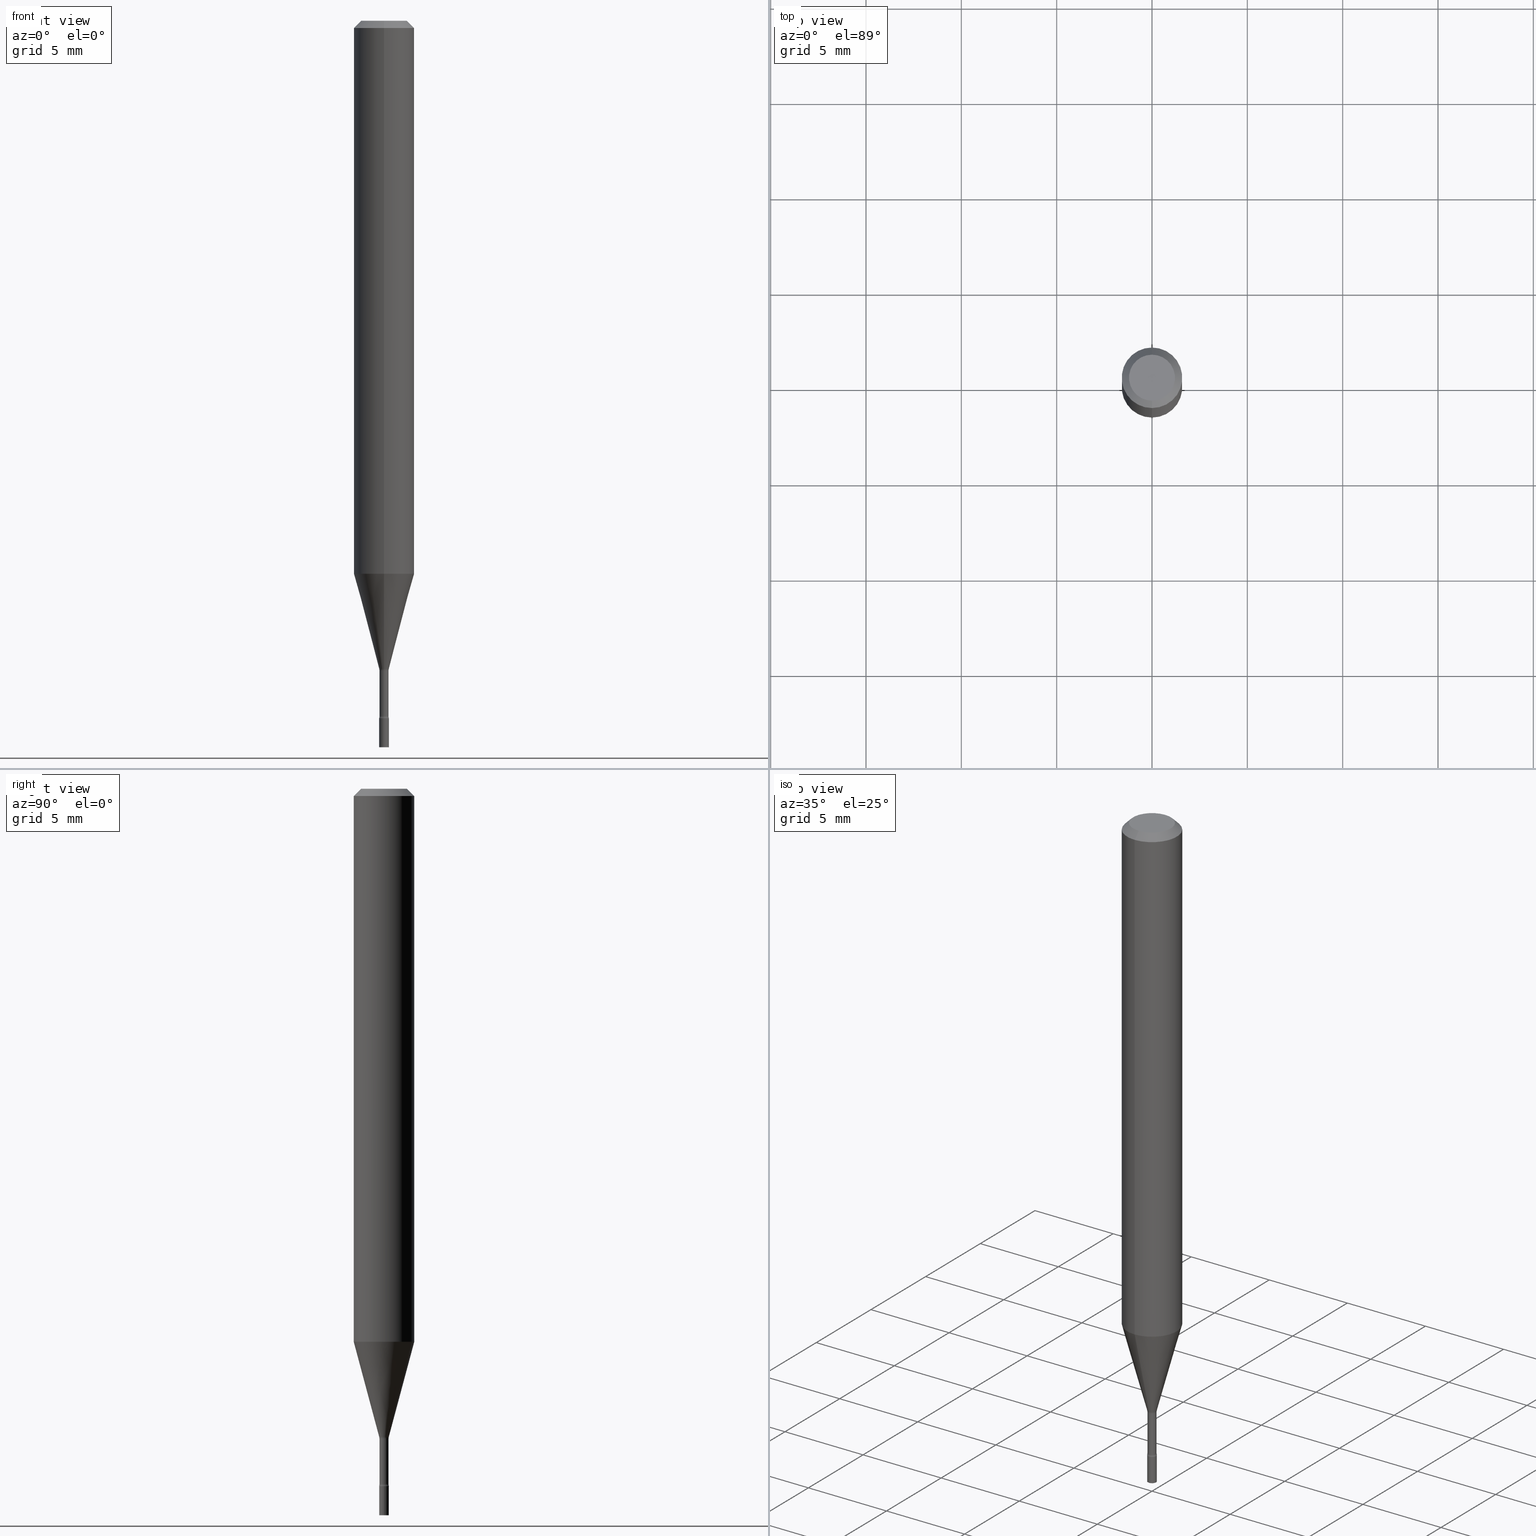
[diagram: canonical four-view strip — front | top / right | iso, engineering-drawing reading convention]
A machine part, canonical four-view strip (front | top / right | iso — engineering-drawing reading convention). The complete STEP part file that produces these views, byte-faithful:
ISO-10303-21;
HEADER;
FILE_DESCRIPTION (( 'STEP AP203' ),
    '1' );
FILE_NAME ('03456.STEP',
    '2024-03-08T21:25:03',
    ( '' ),
    ( '' ),
    'SwSTEP 2.0',
    'SolidWorks 2023',
    '' );
FILE_SCHEMA (( 'CONFIG_CONTROL_DESIGN' ));
ENDSEC;

DATA;
#1 = VERTEX_POINT ( 'NONE', #143 ) ;
#2 = EDGE_CURVE ( 'NONE', #483, #94, #250, .T. ) ;
#3 = FACE_OUTER_BOUND ( 'NONE', #416, .T. ) ;
#4 = VERTEX_POINT ( 'NONE', #15 ) ;
#5 = DATE_AND_TIME ( #96, #332 ) ;
#6 = LINE ( 'NONE', #288, #127 ) ;
#7 = CALENDAR_DATE ( 2024, 8, 3 ) ;
#8 = FACE_OUTER_BOUND ( 'NONE', #53, .T. ) ;
#9 = ORIENTED_EDGE ( 'NONE', *, *, #38, .T. ) ;
#10 = CLOSED_SHELL ( 'NONE', ( #43, #185, #311, #215 ) ) ;
#11 = AXIS2_PLACEMENT_3D ( 'NONE', #202, #391, #37 ) ;
#12 = EDGE_CURVE ( 'NONE', #271, #313, #343, .T. ) ;
#13 = CARTESIAN_POINT ( 'NONE',  ( 3.521330221827632520E-29, -5.027940574380074550E-15, -1.440000000000000169 ) ) ;
#14 = EDGE_LOOP ( 'NONE', ( #435, #137, #349, #107 ) ) ;
#15 = CARTESIAN_POINT ( 'NONE',  ( -0.01000000000000000021, -5.061423294523413937E-15, -1.500000000000000222 ) ) ;
#16 = DIRECTION ( 'NONE',  ( 1.000000000000000000, -7.105427357601001070E-15, 4.926317272768652439E-29 ) ) ;
#17 = EDGE_LOOP ( 'NONE', ( #192, #326, #440, #382 ) ) ;
#18 = FACE_OUTER_BOUND ( 'NONE', #17, .T. ) ;
#19 = CARTESIAN_POINT ( 'NONE',  ( 3.281622483352105208E-29, -4.685673252558591143E-15, -1.341974787463811269 ) ) ;
#20 = CONICAL_SURFACE ( 'NONE', #239, 0.06250000000000000000, 0.7853981633974483900 ) ;
#21 = APPROVAL_PERSON_ORGANIZATION ( #446, #464, #293 ) ;
#22 = CC_DESIGN_PERSON_AND_ORGANIZATION_ASSIGNMENT ( #287, #254, ( #251 ) ) ;
#23 = DIRECTION ( 'NONE',  ( -6.982962677686266711E-15, -1.000000000000000000, 3.491625398875051946E-15 ) ) ;
#24 = EDGE_CURVE ( 'NONE', #375, #95, #494, .T. ) ;
#25 = DIRECTION ( 'NONE',  ( 1.000000000000000000, -6.982962677686235945E-15, 0.000000000000000000 ) ) ;
#26 = CYLINDRICAL_SURFACE ( 'NONE', #35, 0.01000000000000000021 ) ;
#27 = FACE_OUTER_BOUND ( 'NONE', #465, .T. ) ;
#28 = LINE ( 'NONE', #72, #301 ) ;
#29 = AXIS2_PLACEMENT_3D ( 'NONE', #230, #188, #381 ) ;
#30 = AXIS2_PLACEMENT_3D ( 'NONE', #398, #69, #357 ) ;
#31 = DIRECTION ( 'NONE',  ( -2.445368209602522272E-29, 3.491625398875051552E-15, 1.000000000000000000 ) ) ;
#32 = LINE ( 'NONE', #121, #170 ) ;
#33 = PERSON ( 'UNSPECIFIED', 'UNSPECIFIED', 'UNSPECIFIED', ('UNSPECIFIED'), ('UNSPECIFIED'), ('UNSPECIFIED') ) ;
#34 = VERTEX_POINT ( 'NONE', #269 ) ;
#35 = AXIS2_PLACEMENT_3D ( 'NONE', #350, #151, #307 ) ;
#36 = ORIENTED_EDGE ( 'NONE', *, *, #395, .F. ) ;
#37 = DIRECTION ( 'NONE',  ( 1.000000000000000000, -6.982962677686235945E-15, 0.000000000000000000 ) ) ;
#38 = EDGE_CURVE ( 'NONE', #336, #356, #387, .T. ) ;
#39 = PERSON_AND_ORGANIZATION ( #33, #210 ) ;
#40 = PERSON_AND_ORGANIZATION ( #33, #210 ) ;
#41 = FACE_OUTER_BOUND ( 'NONE', #70, .T. ) ;
#42 = ORIENTED_EDGE ( 'NONE', *, *, #304, .T. ) ;
#43 = ADVANCED_FACE ( 'NONE', ( #266 ), #26, .T. ) ;
#44 = ORIENTED_EDGE ( 'NONE', *, *, #274, .T. ) ;
#45 = DATE_TIME_ROLE ( 'classification_date' ) ;
#46 = DIRECTION ( 'NONE',  ( -2.445368209602522272E-29, 3.491625398875051552E-15, 1.000000000000000000 ) ) ;
#47 = ORIENTED_EDGE ( 'NONE', *, *, #364, .T. ) ;
#48 = APPROVAL_ROLE ( '' ) ;
#49 = CARTESIAN_POINT ( 'NONE',  ( 3.521475080906597305E-29, -5.027733127934130649E-15, -1.440000000000000169 ) ) ;
#50 = ORIENTED_EDGE ( 'NONE', *, *, #491, .T. ) ;
#51 = EDGE_LOOP ( 'NONE', ( #461, #517, #333, #44 ) ) ;
#52 = DIRECTION ( 'NONE',  ( -2.445368209602522272E-29, 3.491625398875051552E-15, 1.000000000000000000 ) ) ;
#53 = EDGE_LOOP ( 'NONE', ( #264, #131, #50, #305 ) ) ;
#54 = DIRECTION ( 'NONE',  ( -2.445368209602522272E-29, 3.491625398875051552E-15, 1.000000000000000000 ) ) ;
#55 = ADVANCED_FACE ( 'NONE', ( #18 ), #119, .T. ) ;
#56 = DIRECTION ( 'NONE',  ( 2.445368209602522272E-29, -3.491625398875051552E-15, -1.000000000000000000 ) ) ;
#57 = EDGE_LOOP ( 'NONE', ( #9, #224 ) ) ;
#58 = ORIENTED_EDGE ( 'NONE', *, *, #320, .F. ) ;
#59 = DIRECTION ( 'NONE',  ( -2.445468806185136597E-29, 3.491481338843145583E-15, 1.000000000000000000 ) ) ;
#60 = ORIENTED_EDGE ( 'NONE', *, *, #451, .F. ) ;
#61 = DIRECTION ( 'NONE',  ( -6.982962677686264344E-15, -1.000000000000000000, 0.000000000000000000 ) ) ;
#62 = CARTESIAN_POINT ( 'NONE',  ( 3.521475080906597305E-29, -5.027733127934130649E-15, -1.440000000000000169 ) ) ;
#63 = AXIS2_PLACEMENT_3D ( 'NONE', #263, #493, #23 ) ;
#64 = CARTESIAN_POINT ( 'NONE',  ( -4.287811248607203282E-16, -0.06250000000000005551, -0.01499999999999981209 ) ) ;
#65 = CARTESIAN_POINT ( 'NONE',  ( 3.521475080906597305E-29, -5.027733127934130649E-15, -1.440000000000000169 ) ) ;
#66 = ORIENTED_EDGE ( 'NONE', *, *, #402, .T. ) ;
#67 = DIRECTION ( 'NONE',  ( -6.982962677686269077E-15, -1.000000000000000000, 0.000000000000000000 ) ) ;
#68 = ORIENTED_EDGE ( 'NONE', *, *, #431, .F. ) ;
#69 = DIRECTION ( 'NONE',  ( -2.445368209602522272E-29, 3.491625398875051552E-15, 1.000000000000000000 ) ) ;
#70 = EDGE_LOOP ( 'NONE', ( #299, #47, #83, #291 ) ) ;
#71 = CONICAL_SURFACE ( 'NONE', #388, 0.06250000000000000000, 0.7853981633974483900 ) ;
#72 = CARTESIAN_POINT ( 'NONE',  ( -6.920892941966473990E-17, -0.009911112605668655554, -1.338092501787273347 ) ) ;
#73 = FACE_OUTER_BOUND ( 'NONE', #414, .T. ) ;
#74 = ORIENTED_EDGE ( 'NONE', *, *, #352, .F. ) ;
#75 = CC_DESIGN_PERSON_AND_ORGANIZATION_ASSIGNMENT ( #39, #515, ( #92 ) ) ;
#76 = DIRECTION ( 'NONE',  ( 7.105427357601005014E-15, 1.000000000000000000, 0.000000000000000000 ) ) ;
#77 = EDGE_LOOP ( 'NONE', ( #36, #124, #368, #66 ) ) ;
#78 = TOROIDAL_SURFACE ( 'NONE', #316, 0.02440000000000000155, 0.01500000000000002373 ) ;
#79 = AXIS2_PLACEMENT_3D ( 'NONE', #476, #509, #118 ) ;
#80 = ADVANCED_BREP_SHAPE_REPRESENTATION ( '03456', ( #204, #200, #497 ), #457 ) ;
#81 = COORDINATED_UNIVERSAL_TIME_OFFSET ( 5, 0, .BEHIND. ) ;
#82 = ORIENTED_EDGE ( 'NONE', *, *, #24, .T. ) ;
#83 = ORIENTED_EDGE ( 'NONE', *, *, #2, .T. ) ;
#84 = DATE_AND_TIME ( #252, #508 ) ;
#85 = PRODUCT_DEFINITION ( 'UNKNOWN', '', #251, #161 ) ;
#86 = DIRECTION ( 'NONE',  ( 6.982962677686265922E-15, 1.000000000000000000, -3.483106191921935554E-15 ) ) ;
#87 = EDGE_CURVE ( 'NONE', #184, #1, #203, .T. ) ;
#88 = DIRECTION ( 'NONE',  ( -6.982962677686265922E-15, -1.000000000000000000, 3.491625398875051946E-15 ) ) ;
#89 = AXIS2_PLACEMENT_3D ( 'NONE', #516, #245, #169 ) ;
#90 = APPLICATION_PROTOCOL_DEFINITION ( 'international standard', 'config_control_design', 1994, #511 ) ;
#91 = AXIS2_PLACEMENT_3D ( 'NONE', #415, #54, #221 ) ;
#92 = SECURITY_CLASSIFICATION ( '', '', #441 ) ;
#93 = PLANE ( 'NONE',  #407 ) ;
#94 = VERTEX_POINT ( 'NONE', #97 ) ;
#95 = VERTEX_POINT ( 'NONE', #411 ) ;
#96 = CALENDAR_DATE ( 2024, 8, 3 ) ;
#97 = CARTESIAN_POINT ( 'NONE',  ( 4.440892098500906207E-16, 0.06249999999999993755, -0.01500000000000024751 ) ) ;
#98 = CC_DESIGN_DATE_AND_TIME_ASSIGNMENT ( #327, #139, ( #85 ) ) ;
#99 = DIRECTION ( 'NONE',  ( -2.438088387897960049E-29, 3.491481338843145188E-15, 1.000000000000000000 ) ) ;
#100 = DIRECTION ( 'NONE',  ( -6.982962677686265922E-15, -1.000000000000000000, 3.483106191921935554E-15 ) ) ;
#101 = CARTESIAN_POINT ( 'NONE',  ( 0.000000000000000000, 0.000000000000000000, 0.000000000000000000 ) ) ;
#102 = CIRCLE ( 'NONE', #475, 0.01000000000000000021 ) ;
#103 = CARTESIAN_POINT ( 'NONE',  ( -6.920892941966473990E-17, -0.009911112605668655554, -1.338092501787273347 ) ) ;
#104 = ADVANCED_FACE ( 'NONE', ( #8 ), #135, .T. ) ;
#105 = VERTEX_POINT ( 'NONE', #453 ) ;
#106 = CARTESIAN_POINT ( 'NONE',  ( 3.272128865378104178E-29, -4.672117765284703339E-15, -1.338092501787273347 ) ) ;
#107 = ORIENTED_EDGE ( 'NONE', *, *, #257, .F. ) ;
#108 = CARTESIAN_POINT ( 'NONE',  ( 6.892264536876491067E-17, 0.009399999999995004366, -1.435800000000000187 ) ) ;
#109 = DIRECTION ( 'NONE',  ( -2.445368209602522272E-29, 3.491625398875051552E-15, 1.000000000000000000 ) ) ;
#110 = CIRCLE ( 'NONE', #480, 0.01000000000000000021 ) ;
#111 = LOCAL_TIME ( 16, 25, 3.000000000000000000, #286 ) ;
#112 = ORIENTED_EDGE ( 'NONE', *, *, #513, .T. ) ;
#113 = EDGE_CURVE ( 'NONE', #4, #115, #331, .T. ) ;
#114 = FACE_OUTER_BOUND ( 'NONE', #342, .T. ) ;
#115 = VERTEX_POINT ( 'NONE', #486 ) ;
#116 = EDGE_CURVE ( 'NONE', #171, #94, #255, .T. ) ;
#117 = ORIENTED_EDGE ( 'NONE', *, *, #24, .F. ) ;
#118 = DIRECTION ( 'NONE',  ( -6.982962677686267499E-15, -1.000000000000000000, 0.000000000000000000 ) ) ;
#119 = CONICAL_SURFACE ( 'NONE', #518, 0.009911112605663983943, 0.2617993877991500740 ) ;
#120 = CIRCLE ( 'NONE', #369, 0.01500000000000001853 ) ;
#121 = CARTESIAN_POINT ( 'NONE',  ( 0.01000000000000000021, -6.982962677686265724E-17, 4.876176775795935968E-31 ) ) ;
#122 = APPLICATION_CONTEXT ( 'configuration controlled 3d designs of mechanical parts and assemblies' ) ;
#123 = PLANE ( 'NONE',  #162 ) ;
#124 = ORIENTED_EDGE ( 'NONE', *, *, #360, .F. ) ;
#125 = PRODUCT ( '03456', '03456', '', ( #134 ) ) ;
#126 = DIRECTION ( 'NONE',  ( 1.000000000000000000, -7.105427357601001070E-15, 4.926317272768652439E-29 ) ) ;
#127 = VECTOR ( 'NONE', #290, 39.37007874015748143 ) ;
#128 = APPROVAL_STATUS ( 'not_yet_approved' ) ;
#129 = ADVANCED_FACE ( 'NONE', ( #253 ), #488, .F. ) ;
#130 = DIRECTION ( 'NONE',  ( -6.982962677686265922E-15, -1.000000000000000000, 3.491625398875051552E-15 ) ) ;
#131 = ORIENTED_EDGE ( 'NONE', *, *, #451, .T. ) ;
#132 = PERSON_AND_ORGANIZATION ( #33, #210 ) ;
#133 = FACE_OUTER_BOUND ( 'NONE', #57, .T. ) ;
#134 = MECHANICAL_CONTEXT ( 'NONE', #511, 'mechanical' ) ;
#135 = CYLINDRICAL_SURFACE ( 'NONE', #209, 0.06250000000000000000 ) ;
#136 = CARTESIAN_POINT ( 'NONE',  ( -3.773273898774340269E-16, -0.04749999999999999362, 1.369451383702114461E-16 ) ) ;
#137 = ORIENTED_EDGE ( 'NONE', *, *, #470, .T. ) ;
#138 = PRODUCT_RELATED_PRODUCT_CATEGORY ( 'detail', '', ( #125 ) ) ;
#139 = DATE_TIME_ROLE ( 'creation_date' ) ;
#140 = DIRECTION ( 'NONE',  ( -6.982962677686264344E-15, -1.000000000000000000, 0.000000000000000000 ) ) ;
#141 = DIRECTION ( 'NONE',  ( -2.445368209602522272E-29, 3.491625398875051552E-15, 1.000000000000000000 ) ) ;
#142 = DIRECTION ( 'NONE',  ( 1.000000000000000000, -6.982962677686235945E-15, 0.000000000000000000 ) ) ;
#143 = CARTESIAN_POINT ( 'NONE',  ( -6.982962677682741735E-17, -0.01000000000000502397, -1.440000000000000169 ) ) ;
#144 = FACE_OUTER_BOUND ( 'NONE', #189, .T. ) ;
#145 = ADVANCED_FACE ( 'NONE', ( #41 ), #20, .T. ) ;
#146 = AXIS2_PLACEMENT_3D ( 'NONE', #272, #178, #406 ) ;
#147 = AXIS2_PLACEMENT_3D ( 'NONE', #273, #31, #318 ) ;
#148 = CARTESIAN_POINT ( 'NONE',  ( 7.042269065258173483E-17, 0.009911112605659312333, -1.338092501787273347 ) ) ;
#149 = ORIENTED_EDGE ( 'NONE', *, *, #472, .T. ) ;
#150 = DIRECTION ( 'NONE',  ( -6.982962677686264344E-15, -1.000000000000000000, 0.000000000000000000 ) ) ;
#151 = DIRECTION ( 'NONE',  ( -2.445468806185136597E-29, 3.491481338843145583E-15, 1.000000000000000000 ) ) ;
#152 = CARTESIAN_POINT ( 'NONE',  ( 3.668052314403790151E-31, -5.237438098312587928E-17, -0.01500000000000003067 ) ) ;
#153 = CIRCLE ( 'NONE', #448, 0.01500000000000001853 ) ;
#154 = CC_DESIGN_APPROVAL ( #464, ( #251 ) ) ;
#155 = CC_DESIGN_PERSON_AND_ORGANIZATION_ASSIGNMENT ( #334, #206, ( #125 ) ) ;
#156 = EDGE_CURVE ( 'NONE', #105, #94, #6, .T. ) ;
#157 = DIRECTION ( 'NONE',  ( -2.445368209602522272E-29, 3.491625398875051552E-15, 1.000000000000000000 ) ) ;
#158 = DIRECTION ( 'NONE',  ( -2.445368209602522272E-29, 3.491625398875051552E-15, 1.000000000000000000 ) ) ;
#159 = EDGE_CURVE ( 'NONE', #313, #271, #179, .T. ) ;
#160 = TOROIDAL_SURFACE ( 'NONE', #91, 0.02440000000000000155, 0.01500000000000002373 ) ;
#161 = DESIGN_CONTEXT ( 'detailed design', #122, 'design' ) ;
#162 = AXIS2_PLACEMENT_3D ( 'NONE', #506, #321, #164 ) ;
#163 = VECTOR ( 'NONE', #306, 39.37007874015748143 ) ;
#164 = DIRECTION ( 'NONE',  ( 6.982962677686265922E-15, 1.000000000000000000, -3.491625398875051552E-15 ) ) ;
#165 = LENGTH_MEASURE_WITH_UNIT ( LENGTH_MEASURE( 0.02539999999999999897 ), #432 );
#166 = ADVANCED_FACE ( 'NONE', ( #3 ), #484, .T. ) ;
#167 = EDGE_LOOP ( 'NONE', ( #485, #82, #177, #338 ) ) ;
#168 = COORDINATED_UNIVERSAL_TIME_OFFSET ( 5, 0, .BEHIND. ) ;
#169 = DIRECTION ( 'NONE',  ( -1.000000000000000000, 6.982962677686265922E-15, -4.876176775795935793E-29 ) ) ;
#170 = VECTOR ( 'NONE', #362, 39.37007874015748143 ) ;
#171 = VERTEX_POINT ( 'NONE', #372 ) ;
#172 = PERSON_AND_ORGANIZATION_ROLE ( 'creator' ) ;
#173 = DIRECTION ( 'NONE',  ( -2.445468806185136877E-29, 3.491481338843145188E-15, 1.000000000000000000 ) ) ;
#174 = VERTEX_POINT ( 'NONE', #447 ) ;
#175 = DIRECTION ( 'NONE',  ( -2.445468806185136597E-29, 3.491481338843145583E-15, 1.000000000000000000 ) ) ;
#176 = ORIENTED_EDGE ( 'NONE', *, *, #2, .F. ) ;
#177 = ORIENTED_EDGE ( 'NONE', *, *, #274, .F. ) ;
#178 = DIRECTION ( 'NONE',  ( -1.000000000000000000, 6.982962677686265922E-15, -4.883557194083112901E-29 ) ) ;
#179 = CIRCLE ( 'NONE', #473, 0.009911112605663983943 ) ;
#180 = AXIS2_PLACEMENT_3D ( 'NONE', #279, #199, #354 ) ;
#181 = CYLINDRICAL_SURFACE ( 'NONE', #466, 0.009400000000000009043 ) ;
#182 = VERTEX_POINT ( 'NONE', #136 ) ;
#183 = CARTESIAN_POINT ( 'NONE',  ( -1.703842893355120750E-16, -0.02440000000000468877, -1.341974787463811269 ) ) ;
#184 = VERTEX_POINT ( 'NONE', #208 ) ;
#185 = ADVANCED_FACE ( 'NONE', ( #133 ), #93, .T. ) ;
#186 = ADVANCED_FACE ( 'NONE', ( #377 ), #181, .T. ) ;
#187 = DIRECTION ( 'NONE',  ( -2.445368209602522272E-29, 3.491625398875051552E-15, 1.000000000000000000 ) ) ;
#188 = DIRECTION ( 'NONE',  ( -2.445368209602522272E-29, 3.491625398875051552E-15, 1.000000000000000000 ) ) ;
#189 = EDGE_LOOP ( 'NONE', ( #378, #195, #112, #74 ) ) ;
#190 = CARTESIAN_POINT ( 'NONE',  ( 3.272128865378104178E-29, -4.672117765284703339E-15, -1.338092501787273347 ) ) ;
#191 = DIRECTION ( 'NONE',  ( -2.445368209602522272E-29, 3.491625398875051552E-15, 1.000000000000000000 ) ) ;
#192 = ORIENTED_EDGE ( 'NONE', *, *, #12, .T. ) ;
#193 = LOCAL_TIME ( 16, 25, 3.000000000000000000, #452 ) ;
#194 = DIRECTION ( 'NONE',  ( -2.445468806185136597E-29, 3.491481338843145583E-15, 1.000000000000000000 ) ) ;
#195 = ORIENTED_EDGE ( 'NONE', *, *, #113, .T. ) ;
#196 = DIRECTION ( 'NONE',  ( -2.445368209602522272E-29, 3.491625398875051552E-15, 1.000000000000000000 ) ) ;
#197 = ADVANCED_FACE ( 'NONE', ( #366 ), #160, .F. ) ;
#198 = EDGE_LOOP ( 'NONE', ( #297, #443, #403, #370 ) ) ;
#199 = DIRECTION ( 'NONE',  ( -2.445368209602522272E-29, 3.491625398875051552E-15, 1.000000000000000000 ) ) ;
#200 = MANIFOLD_SOLID_BREP ( 'Body-Move/Copy2[2]', #507 ) ;
#201 = CIRCLE ( 'NONE', #63, 0.04749999999999999362 ) ;
#202 = CARTESIAN_POINT ( 'NONE',  ( 3.668203209277704895E-29, -5.237222008264718177E-15, -1.500000000000000222 ) ) ;
#203 = CIRCLE ( 'NONE', #146, 0.01499999999999999424 ) ;
#204 = MANIFOLD_SOLID_BREP ( 'Body-Move/Copy2[1]', #10 ) ;
#205 = CARTESIAN_POINT ( 'NONE',  ( -4.364351673553916201E-16, -0.06250000000000000000, 2.182265874296907220E-16 ) ) ;
#206 = PERSON_AND_ORGANIZATION_ROLE ( 'design_owner' ) ;
#207 = APPLICATION_PROTOCOL_DEFINITION ( 'international standard', 'config_control_design', 1994, #122 ) ;
#208 = CARTESIAN_POINT ( 'NONE',  ( -6.563984917021591972E-17, -0.009400000000005031067, -1.435800000000000187 ) ) ;
#209 = AXIS2_PLACEMENT_3D ( 'NONE', #324, #46, #130 ) ;
#210 = ORGANIZATION ( 'UNSPECIFIED', 'UNSPECIFIED', '' ) ;
#211 = DIRECTION ( 'NONE',  ( 2.445368209602522272E-29, -3.491625398875051552E-15, -1.000000000000000000 ) ) ;
#212 = UNCERTAINTY_MEASURE_WITH_UNIT (LENGTH_MEASURE( 1.000000000000000082E-05 ), #237, 'distance_accuracy_value', 'NONE');
#213 = CC_DESIGN_PERSON_AND_ORGANIZATION_ASSIGNMENT ( #244, #241, ( #251 ) ) ;
#214 = COORDINATED_UNIVERSAL_TIME_OFFSET ( 5, 0, .BEHIND. ) ;
#215 = ADVANCED_FACE ( 'NONE', ( #520 ), #256, .T. ) ;
#216 = DIRECTION ( 'NONE',  ( 1.000000000000000000, -6.982962677686265922E-15, 4.876176775795935793E-29 ) ) ;
#217 = DIRECTION ( 'NONE',  ( -6.982962677686265922E-15, -1.000000000000000000, 3.491625398875051552E-15 ) ) ;
#218 = ORIENTED_EDGE ( 'NONE', *, *, #113, .F. ) ;
#219 = VECTOR ( 'NONE', #109, 39.37007874015748143 ) ;
#220 = CC_DESIGN_APPROVAL ( #229, ( #92 ) ) ;
#221 = DIRECTION ( 'NONE',  ( -6.982962677686265922E-15, -1.000000000000000000, 3.491625398875051946E-15 ) ) ;
#222 = ORIENTED_EDGE ( 'NONE', *, *, #156, .T. ) ;
#223 = DIRECTION ( 'NONE',  ( 1.000000000000000000, -6.982962677686265922E-15, 4.876176775795935793E-29 ) ) ;
#224 = ORIENTED_EDGE ( 'NONE', *, *, #352, .T. ) ;
#225 = DIRECTION ( 'NONE',  ( -6.982962677686265922E-15, -1.000000000000000000, 0.000000000000000000 ) ) ;
#226 = AXIS2_PLACEMENT_3D ( 'NONE', #303, #302, #339 ) ;
#227 = FACE_OUTER_BOUND ( 'NONE', #14, .T. ) ;
#228 = DIRECTION ( 'NONE',  ( -2.445468806185136597E-29, 3.491481338843145583E-15, 1.000000000000000000 ) ) ;
#229 = APPROVAL ( #128, 'UNSPECIFIED' ) ;
#230 = CARTESIAN_POINT ( 'NONE',  ( 3.511059675347302737E-29, -5.013275747704799790E-15, -1.435800000000000187 ) ) ;
#231 = DIRECTION ( 'NONE',  ( -6.982962677686265922E-15, -1.000000000000000000, 0.000000000000000000 ) ) ;
#232 = CIRCLE ( 'NONE', #456, 0.009399999999999998634 ) ;
#233 = CIRCLE ( 'NONE', #393, 0.01499999999999999424 ) ;
#234 = ORIENTED_EDGE ( 'NONE', *, *, #159, .T. ) ;
#235 = EDGE_CURVE ( 'NONE', #4, #356, #482, .T. ) ;
#236 = DIRECTION ( 'NONE',  ( -6.982962677686265922E-15, -1.000000000000000000, 3.483106191921935554E-15 ) ) ;
#237 =( CONVERSION_BASED_UNIT ( 'INCH', #165 ) LENGTH_UNIT ( ) NAMED_UNIT ( #289 ) );
#238 = DIRECTION ( 'NONE',  ( -2.445368209602522272E-29, 3.491625398875051552E-15, 1.000000000000000000 ) ) ;
#239 = AXIS2_PLACEMENT_3D ( 'NONE', #374, #211, #86 ) ;
#240 = CIRCLE ( 'NONE', #147, 0.009399999999999998634 ) ;
#241 = PERSON_AND_ORGANIZATION_ROLE ( 'creator' ) ;
#242 = ADVANCED_FACE ( 'NONE', ( #227 ), #78, .F. ) ;
#243 = ORIENTED_EDGE ( 'NONE', *, *, #116, .T. ) ;
#244 = PERSON_AND_ORGANIZATION ( #33, #210 ) ;
#245 = DIRECTION ( 'NONE',  ( 2.438088387897960049E-29, -3.491481338843145188E-15, -1.000000000000000000 ) ) ;
#246 = EDGE_LOOP ( 'NONE', ( #117, #419, #430, #68 ) ) ;
#247 = DATE_AND_TIME ( #489, #502 ) ;
#248 = DIRECTION ( 'NONE',  ( -2.445368209602522272E-29, 3.491625398875051552E-15, 1.000000000000000000 ) ) ;
#249 = ORIENTED_EDGE ( 'NONE', *, *, #320, .T. ) ;
#250 = CIRCLE ( 'NONE', #353, 0.06250000000000000000 ) ;
#251 = PRODUCT_DEFINITION_FORMATION_WITH_SPECIFIED_SOURCE ( 'ANY', '', #125, .NOT_KNOWN. ) ;
#252 = CALENDAR_DATE ( 2024, 8, 3 ) ;
#253 = FACE_OUTER_BOUND ( 'NONE', #77, .T. ) ;
#254 = PERSON_AND_ORGANIZATION_ROLE ( 'design_supplier' ) ;
#255 = LINE ( 'NONE', #330, #423 ) ;
#256 = PLANE ( 'NONE',  #89 ) ;
#257 = EDGE_CURVE ( 'NONE', #271, #258, #153, .T. ) ;
#258 = VERTEX_POINT ( 'NONE', #468 ) ;
#259 = CARTESIAN_POINT ( 'NONE',  ( 3.272128865378104178E-29, -4.672117765284703339E-15, -1.338092501787273347 ) ) ;
#260 = CIRCLE ( 'NONE', #29, 0.009400000000000017716 ) ;
#261 = PLANE ( 'NONE',  #226 ) ;
#262 = ORIENTED_EDGE ( 'NONE', *, *, #281, .T. ) ;
#263 = CARTESIAN_POINT ( 'NONE',  ( 7.068842530673074926E-46, -1.009326531024059951E-31, -2.890706807635348289E-17 ) ) ;
#264 = ORIENTED_EDGE ( 'NONE', *, *, #116, .F. ) ;
#265 = DIRECTION ( 'NONE',  ( -2.445368209602522272E-29, 3.491625398875051552E-15, 1.000000000000000000 ) ) ;
#266 = FACE_OUTER_BOUND ( 'NONE', #198, .T. ) ;
#267 = ADVANCED_FACE ( 'NONE', ( #114 ), #261, .F. ) ;
#268 = FACE_OUTER_BOUND ( 'NONE', #361, .T. ) ;
#269 = CARTESIAN_POINT ( 'NONE',  ( 7.105427357604519833E-17, 0.009999999999994971245, -1.440000000000000169 ) ) ;
#270 = DIRECTION ( 'NONE',  ( 6.982962677686265922E-15, 1.000000000000000000, -3.483106191921935554E-15 ) ) ;
#271 = VERTEX_POINT ( 'NONE', #103 ) ;
#272 = CARTESIAN_POINT ( 'NONE',  ( -1.703842893355098316E-16, -0.02440000000000502184, -1.435800000000000187 ) ) ;
#273 = CARTESIAN_POINT ( 'NONE',  ( 3.281622483352105208E-29, -4.685673252558591143E-15, -1.341974787463811269 ) ) ;
#274 = EDGE_CURVE ( 'NONE', #258, #95, #232, .T. ) ;
#275 = ORIENTED_EDGE ( 'NONE', *, *, #87, .F. ) ;
#276 = DIRECTION ( 'NONE',  ( -2.445368209602522272E-29, 3.491625398875051552E-15, 1.000000000000000000 ) ) ;
#277 = AXIS2_PLACEMENT_3D ( 'NONE', #101, #59, #223 ) ;
#278 = CIRCLE ( 'NONE', #519, 0.06250000000000000000 ) ;
#279 = CARTESIAN_POINT ( 'NONE',  ( 7.068842530673074926E-46, -1.009326531024059951E-31, -2.890706807635348289E-17 ) ) ;
#280 = CC_DESIGN_PERSON_AND_ORGANIZATION_ASSIGNMENT ( #373, #172, ( #85 ) ) ;
#281 = EDGE_CURVE ( 'NONE', #174, #171, #292, .T. ) ;
#282 =( NAMED_UNIT ( * ) PLANE_ANGLE_UNIT ( ) SI_UNIT ( $, .RADIAN. ) );
#283 = AXIS2_PLACEMENT_3D ( 'NONE', #328, #52, #88 ) ;
#284 = CIRCLE ( 'NONE', #79, 0.009400000000000017716 ) ;
#285 = ORIENTED_EDGE ( 'NONE', *, *, #426, .F. ) ;
#286 = COORDINATED_UNIVERSAL_TIME_OFFSET ( 5, 0, .BEHIND. ) ;
#287 = PERSON_AND_ORGANIZATION ( #33, #210 ) ;
#288 = CARTESIAN_POINT ( 'NONE',  ( 4.364351673553919652E-16, 0.06249999999999995143, -0.01500000000000024751 ) ) ;
#289 = DIMENSIONAL_EXPONENTS ( 1.000000000000000000, 0.000000000000000000, 0.000000000000000000, 0.000000000000000000, 0.000000000000000000, 0.000000000000000000, 0.000000000000000000 ) ;
#290 = DIRECTION ( 'NONE',  ( 4.937700262164548042E-15, 0.7071067811865451302, -0.7071067811865499042 ) ) ;
#291 = ORIENTED_EDGE ( 'NONE', *, *, #156, .F. ) ;
#292 = CIRCLE ( 'NONE', #308, 0.06250000000000000000 ) ;
#293 = APPROVAL_ROLE ( '' ) ;
#294 = CARTESIAN_POINT ( 'NONE',  ( 3.668203209277704895E-29, -5.237222008264718177E-15, -1.500000000000000222 ) ) ;
#295 = CARTESIAN_POINT ( 'NONE',  ( 0.000000000000000000, 0.000000000000000000, 0.000000000000000000 ) ) ;
#296 = DIRECTION ( 'NONE',  ( -6.982962677686265922E-15, -1.000000000000000000, 3.491625398875051158E-15 ) ) ;
#297 = ORIENTED_EDGE ( 'NONE', *, *, #437, .T. ) ;
#298 = DIRECTION ( 'NONE',  ( 1.839019923739598738E-15, 0.2588190451025247363, 0.9659258262890673130 ) ) ;
#299 = ORIENTED_EDGE ( 'NONE', *, *, #504, .F. ) ;
#300 = AXIS2_PLACEMENT_3D ( 'NONE', #259, #187, #340 ) ;
#301 = VECTOR ( 'NONE', #436, 39.37007874015748854 ) ;
#302 = DIRECTION ( 'NONE',  ( -2.445368209602521711E-29, 3.491625398875051552E-15, 1.000000000000000000 ) ) ;
#303 = CARTESIAN_POINT ( 'NONE',  ( 6.982962677689787249E-17, 0.009999999999994971245, -1.440000000000000169 ) ) ;
#304 = EDGE_CURVE ( 'NONE', #105, #182, #201, .T. ) ;
#305 = ORIENTED_EDGE ( 'NONE', *, *, #477, .F. ) ;
#306 = DIRECTION ( 'NONE',  ( -4.851104656540964275E-15, -0.7071067811865500152, -0.7071067811865450192 ) ) ;
#307 = DIRECTION ( 'NONE',  ( 1.000000000000000000, -6.982962677686265922E-15, 4.876176775795935793E-29 ) ) ;
#308 = AXIS2_PLACEMENT_3D ( 'NONE', #495, #500, #345 ) ;
#309 = CARTESIAN_POINT ( 'NONE',  ( -0.01000000000000000021, -5.061423294523413937E-15, -1.440000000000000169 ) ) ;
#310 = CIRCLE ( 'NONE', #11, 0.01000000000000000021 ) ;
#311 = ADVANCED_FACE ( 'NONE', ( #144 ), #421, .T. ) ;
#312 = CYLINDRICAL_SURFACE ( 'NONE', #30, 0.009400000000000009043 ) ;
#313 = VERTEX_POINT ( 'NONE', #390 ) ;
#314 = FACE_OUTER_BOUND ( 'NONE', #246, .T. ) ;
#315 = LINE ( 'NONE', #471, #481 ) ;
#316 = AXIS2_PLACEMENT_3D ( 'NONE', #425, #462, #458 ) ;
#317 = VECTOR ( 'NONE', #238, 39.37007874015748143 ) ;
#318 = DIRECTION ( 'NONE',  ( -6.982962677686265922E-15, -1.000000000000000000, 0.000000000000000000 ) ) ;
#319 = CC_DESIGN_DATE_AND_TIME_ASSIGNMENT ( #479, #45, ( #92 ) ) ;
#320 = EDGE_CURVE ( 'NONE', #34, #1, #110, .T. ) ;
#321 = DIRECTION ( 'NONE',  ( 2.445368209602521711E-29, -3.491625398875051552E-15, -1.000000000000000000 ) ) ;
#322 = ORIENTED_EDGE ( 'NONE', *, *, #437, .F. ) ;
#323 = APPROVAL_STATUS ( 'not_yet_approved' ) ;
#324 = CARTESIAN_POINT ( 'NONE',  ( 0.000000000000000000, 0.000000000000000000, 0.000000000000000000 ) ) ;
#325 = CIRCLE ( 'NONE', #400, 0.06250000000000000000 ) ;
#326 = ORIENTED_EDGE ( 'NONE', *, *, #337, .T. ) ;
#327 = DATE_AND_TIME ( #404, #193 ) ;
#328 = CARTESIAN_POINT ( 'NONE',  ( 3.511204111920620127E-29, -5.013068906310989230E-15, -1.435800000000000187 ) ) ;
#329 = DIRECTION ( 'NONE',  ( 1.000000000000000000, -6.982962677686235945E-15, 0.000000000000000000 ) ) ;
#330 = CARTESIAN_POINT ( 'NONE',  ( 4.440892098500625669E-16, 0.06250000000000000000, -2.182265874296907220E-16 ) ) ;
#331 = CIRCLE ( 'NONE', #392, 0.01000000000000000021 ) ;
#332 = LOCAL_TIME ( 16, 25, 3.000000000000000000, #81 ) ;
#333 = ORIENTED_EDGE ( 'NONE', *, *, #257, .T. ) ;
#334 = PERSON_AND_ORGANIZATION ( #33, #210 ) ;
#335 = CARTESIAN_POINT ( 'NONE',  ( 0.000000000000000000, 0.000000000000000000, 0.000000000000000000 ) ) ;
#336 = VERTEX_POINT ( 'NONE', #386 ) ;
#337 = EDGE_CURVE ( 'NONE', #313, #171, #498, .T. ) ;
#338 = ORIENTED_EDGE ( 'NONE', *, *, #467, .F. ) ;
#339 = DIRECTION ( 'NONE',  ( -6.982962677686265922E-15, -1.000000000000000000, 3.491625398875051552E-15 ) ) ;
#340 = DIRECTION ( 'NONE',  ( -6.982962677686264344E-15, -1.000000000000000000, 0.000000000000000000 ) ) ;
#341 = DIRECTION ( 'NONE',  ( 7.105427357600999492E-15, 1.000000000000000000, 0.000000000000000000 ) ) ;
#342 = EDGE_LOOP ( 'NONE', ( #478, #58 ) ) ;
#343 = CIRCLE ( 'NONE', #300, 0.009911112605663983943 ) ;
#344 = APPROVAL_PERSON_ORGANIZATION ( #132, #384, #48 ) ;
#345 = DIRECTION ( 'NONE',  ( -6.982962677686265922E-15, -1.000000000000000000, 4.370956789862821150E-15 ) ) ;
#346 = ADVANCED_FACE ( 'NONE', ( #460 ), #367, .T. ) ;
#347 = PRODUCT_DEFINITION_SHAPE ( 'NONE', 'NONE',  #85 ) ;
#348 = DIRECTION ( 'NONE',  ( -6.982962677686265922E-15, -1.000000000000000000, 0.000000000000000000 ) ) ;
#349 = ORIENTED_EDGE ( 'NONE', *, *, #431, .T. ) ;
#350 = CARTESIAN_POINT ( 'NONE',  ( 0.000000000000000000, 0.000000000000000000, 0.000000000000000000 ) ) ;
#351 = DIRECTION ( 'NONE',  ( -6.982962677686265922E-15, -1.000000000000000000, 3.491625398875051946E-15 ) ) ;
#352 = EDGE_CURVE ( 'NONE', #356, #336, #438, .T. ) ;
#353 = AXIS2_PLACEMENT_3D ( 'NONE', #492, #141, #100 ) ;
#354 = DIRECTION ( 'NONE',  ( -6.982962677686266711E-15, -1.000000000000000000, 3.491625398875051946E-15 ) ) ;
#355 = TOROIDAL_SURFACE ( 'NONE', #429, 0.02440000000000000849, 0.01499999999999999077 ) ;
#356 = VERTEX_POINT ( 'NONE', #309 ) ;
#357 = DIRECTION ( 'NONE',  ( -6.982962677686265922E-15, -1.000000000000000000, 3.491625398875051158E-15 ) ) ;
#358 = LINE ( 'NONE', #205, #317 ) ;
#359 = ORIENTED_EDGE ( 'NONE', *, *, #337, .F. ) ;
#360 = EDGE_CURVE ( 'NONE', #184, #375, #260, .T. ) ;
#361 = EDGE_LOOP ( 'NONE', ( #285, #450, #249, #275 ) ) ;
#362 = DIRECTION ( 'NONE',  ( -2.445468806185136877E-29, 3.491481338843145188E-15, 1.000000000000000000 ) ) ;
#363 = APPROVAL_DATE_TIME ( #247, #384 ) ;
#364 = EDGE_CURVE ( 'NONE', #182, #483, #499, .T. ) ;
#365 = APPROVAL_ROLE ( '' ) ;
#366 = FACE_OUTER_BOUND ( 'NONE', #51, .T. ) ;
#367 = CONICAL_SURFACE ( 'NONE', #427, 0.009911112605663983943, 0.2617993877991500740 ) ;
#368 = ORIENTED_EDGE ( 'NONE', *, *, #87, .T. ) ;
#369 = AXIS2_PLACEMENT_3D ( 'NONE', #434, #126, #76 ) ;
#370 = ORIENTED_EDGE ( 'NONE', *, *, #513, .F. ) ;
#371 = SHAPE_DEFINITION_REPRESENTATION ( #347, #80 ) ;
#372 = CARTESIAN_POINT ( 'NONE',  ( 4.440892098500904235E-16, 0.06249999999999601014, -1.141828102118093602 ) ) ;
#373 = PERSON_AND_ORGANIZATION ( #33, #210 ) ;
#374 = CARTESIAN_POINT ( 'NONE',  ( 3.668052314403790151E-31, -5.237438098312587928E-17, -0.01500000000000003067 ) ) ;
#375 = VERTEX_POINT ( 'NONE', #108 ) ;
#376 = APPROVAL_DATE_TIME ( #5, #464 ) ;
#377 = FACE_OUTER_BOUND ( 'NONE', #167, .T. ) ;
#378 = ORIENTED_EDGE ( 'NONE', *, *, #235, .F. ) ;
#379 = ADVANCED_FACE ( 'NONE', ( #268 ), #355, .F. ) ;
#380 = AXIS2_PLACEMENT_3D ( 'NONE', #65, #228, #25 ) ;
#381 = DIRECTION ( 'NONE',  ( -6.982962677686267499E-15, -1.000000000000000000, 0.000000000000000000 ) ) ;
#382 = ORIENTED_EDGE ( 'NONE', *, *, #472, .F. ) ;
#383 = CARTESIAN_POINT ( 'NONE',  ( 1.733724275254996100E-16, 0.02439999999999499861, -1.435800000000000187 ) ) ;
#384 = APPROVAL ( #323, 'UNSPECIFIED' ) ;
#385 = ADVANCED_FACE ( 'NONE', ( #27 ), #71, .T. ) ;
#386 = CARTESIAN_POINT ( 'NONE',  ( 0.01000000000000000021, -5.097562754710993158E-15, -1.440000000000000169 ) ) ;
#387 = CIRCLE ( 'NONE', #380, 0.01000000000000000021 ) ;
#388 = AXIS2_PLACEMENT_3D ( 'NONE', #152, #56, #270 ) ;
#389 = CC_DESIGN_SECURITY_CLASSIFICATION ( #92, ( #251 ) ) ;
#390 = CARTESIAN_POINT ( 'NONE',  ( 2.572559502513362641E-16, 0.009911112605659312333, -1.338092501787273347 ) ) ;
#391 = DIRECTION ( 'NONE',  ( -2.445468806185136597E-29, 3.491481338843145583E-15, 1.000000000000000000 ) ) ;
#392 = AXIS2_PLACEMENT_3D ( 'NONE', #294, #175, #329 ) ;
#393 = AXIS2_PLACEMENT_3D ( 'NONE', #383, #16, #341 ) ;
#394 = CARTESIAN_POINT ( 'NONE',  ( -4.364351673553912750E-16, -0.06250000000000005551, -0.01499999999999981209 ) ) ;
#395 = EDGE_CURVE ( 'NONE', #375, #34, #233, .T. ) ;
#396 = DIRECTION ( 'NONE',  ( -2.445368209602522272E-29, 3.491625398875051552E-15, 1.000000000000000000 ) ) ;
#397 = ORIENTED_EDGE ( 'NONE', *, *, #504, .T. ) ;
#398 = CARTESIAN_POINT ( 'NONE',  ( 0.000000000000000000, 0.000000000000000000, 0.000000000000000000 ) ) ;
#399 = VECTOR ( 'NONE', #298, 39.37007874015748854 ) ;
#400 = AXIS2_PLACEMENT_3D ( 'NONE', #474, #396, #236 ) ;
#401 = DIRECTION ( 'NONE',  ( 1.000000000000000000, 0.000000000000000000, 0.000000000000000000 ) ) ;
#402 = EDGE_CURVE ( 'NONE', #1, #34, #102, .T. ) ;
#403 = ORIENTED_EDGE ( 'NONE', *, *, #38, .F. ) ;
#404 = CALENDAR_DATE ( 2024, 8, 3 ) ;
#405 = CARTESIAN_POINT ( 'NONE',  ( -0.01000000000000000021, 7.105427357601002007E-17, -4.918935090254906272E-31 ) ) ;
#406 = DIRECTION ( 'NONE',  ( -6.982962677686265133E-15, -1.000000000000000000, 0.000000000000000000 ) ) ;
#407 = AXIS2_PLACEMENT_3D ( 'NONE', #49, #99, #216 ) ;
#408 = CC_DESIGN_APPROVAL ( #384, ( #85 ) ) ;
#409 = EDGE_LOOP ( 'NONE', ( #359, #234, #149, #60 ) ) ;
#410 = DIRECTION ( 'NONE',  ( 0.000000000000000000, 0.000000000000000000, 1.000000000000000000 ) ) ;
#411 = CARTESIAN_POINT ( 'NONE',  ( 6.679101716148457371E-17, 0.009399999999995313146, -1.341974787463811269 ) ) ;
#412 = APPROVAL_STATUS ( 'not_yet_approved' ) ;
#413 = CARTESIAN_POINT ( 'NONE',  ( 0.000000000000000000, 0.000000000000000000, 0.000000000000000000 ) ) ;
#414 = EDGE_LOOP ( 'NONE', ( #42, #397 ) ) ;
#415 = CARTESIAN_POINT ( 'NONE',  ( 3.281757481429678345E-29, -4.685479927627892670E-15, -1.341974787463811269 ) ) ;
#416 = EDGE_LOOP ( 'NONE', ( #262, #243, #176, #424 ) ) ;
#417 = VECTOR ( 'NONE', #173, 39.37007874015748143 ) ;
#418 = DIRECTION ( 'NONE',  ( -2.445368209602522272E-29, 3.491625398875051552E-15, 1.000000000000000000 ) ) ;
#419 = ORIENTED_EDGE ( 'NONE', *, *, #426, .T. ) ;
#420 = ADVANCED_FACE ( 'NONE', ( #73 ), #123, .F. ) ;
#421 = CYLINDRICAL_SURFACE ( 'NONE', #277, 0.01000000000000000021 ) ;
#422 = DIRECTION ( 'NONE',  ( -1.000000000000000000, 6.982962677686265922E-15, -4.883557194083112901E-29 ) ) ;
#423 = VECTOR ( 'NONE', #445, 39.37007874015748143 ) ;
#424 = ORIENTED_EDGE ( 'NONE', *, *, #491, .F. ) ;
#425 = CARTESIAN_POINT ( 'NONE',  ( 3.281757481429678345E-29, -4.685479927627892670E-15, -1.341974787463811269 ) ) ;
#426 = EDGE_CURVE ( 'NONE', #375, #184, #284, .T. ) ;
#427 = AXIS2_PLACEMENT_3D ( 'NONE', #106, #265, #150 ) ;
#428 = DIRECTION ( 'NONE',  ( -6.982962677686265922E-15, -1.000000000000000000, 4.370956789862821150E-15 ) ) ;
#429 = AXIS2_PLACEMENT_3D ( 'NONE', #454, #196, #351 ) ;
#430 = ORIENTED_EDGE ( 'NONE', *, *, #467, .T. ) ;
#431 = EDGE_CURVE ( 'NONE', #95, #258, #240, .T. ) ;
#432 =( LENGTH_UNIT ( ) NAMED_UNIT ( * ) SI_UNIT ( $, .METRE. ) );
#433 = ORIENTED_EDGE ( 'NONE', *, *, #477, .T. ) ;
#434 = CARTESIAN_POINT ( 'NONE',  ( 1.733724275254972434E-16, 0.02439999999999531433, -1.341974787463811269 ) ) ;
#435 = ORIENTED_EDGE ( 'NONE', *, *, #159, .F. ) ;
#436 = DIRECTION ( 'NONE',  ( -1.807323732225328562E-15, -0.2588190451025179639, 0.9659258262890690894 ) ) ;
#437 = EDGE_CURVE ( 'NONE', #115, #4, #310, .T. ) ;
#438 = CIRCLE ( 'NONE', #501, 0.01000000000000000021 ) ;
#439 = APPROVAL_PERSON_ORGANIZATION ( #40, #229, #365 ) ;
#440 = ORIENTED_EDGE ( 'NONE', *, *, #281, .F. ) ;
#441 = SECURITY_CLASSIFICATION_LEVEL ( 'unclassified' ) ;
#442 = CARTESIAN_POINT ( 'NONE',  ( 3.272128865378104178E-29, -4.672117765284703339E-15, -1.338092501787273347 ) ) ;
#443 = ORIENTED_EDGE ( 'NONE', *, *, #235, .T. ) ;
#444 = APPROVAL_DATE_TIME ( #84, #229 ) ;
#445 = DIRECTION ( 'NONE',  ( -2.445368209602522272E-29, 3.491625398875051552E-15, 1.000000000000000000 ) ) ;
#446 = PERSON_AND_ORGANIZATION ( #33, #210 ) ;
#447 = CARTESIAN_POINT ( 'NONE',  ( -4.364351673553637635E-16, -0.06250000000000399680, -1.141828102118092936 ) ) ;
#448 = AXIS2_PLACEMENT_3D ( 'NONE', #183, #422, #67 ) ;
#449 = CIRCLE ( 'NONE', #180, 0.04749999999999999362 ) ;
#450 = ORIENTED_EDGE ( 'NONE', *, *, #395, .T. ) ;
#451 = EDGE_CURVE ( 'NONE', #171, #174, #278, .T. ) ;
#452 = COORDINATED_UNIVERSAL_TIME_OFFSET ( 5, 0, .BEHIND. ) ;
#453 = CARTESIAN_POINT ( 'NONE',  ( 3.840629472727447874E-16, 0.04749999999999999362, -1.947592745229184365E-16 ) ) ;
#454 = CARTESIAN_POINT ( 'NONE',  ( 3.511204111920620127E-29, -5.013068906310989230E-15, -1.435800000000000187 ) ) ;
#455 = ADVANCED_FACE ( 'NONE', ( #314 ), #312, .T. ) ;
#456 = AXIS2_PLACEMENT_3D ( 'NONE', #19, #191, #348 ) ;
#457 =( GEOMETRIC_REPRESENTATION_CONTEXT ( 3 ) GLOBAL_UNCERTAINTY_ASSIGNED_CONTEXT ( ( #212 ) ) GLOBAL_UNIT_ASSIGNED_CONTEXT ( ( #237, #282, #503 ) ) REPRESENTATION_CONTEXT ( 'NONE', 'WORKASPACE' ) );
#458 = DIRECTION ( 'NONE',  ( -6.982962677686265922E-15, -1.000000000000000000, 3.491625398875051946E-15 ) ) ;
#459 = DIRECTION ( 'NONE',  ( -2.445368209602522272E-29, 3.491625398875051552E-15, 1.000000000000000000 ) ) ;
#460 = FACE_OUTER_BOUND ( 'NONE', #409, .T. ) ;
#461 = ORIENTED_EDGE ( 'NONE', *, *, #470, .F. ) ;
#462 = DIRECTION ( 'NONE',  ( -2.445368209602522272E-29, 3.491625398875051552E-15, 1.000000000000000000 ) ) ;
#463 = CARTESIAN_POINT ( 'NONE',  ( 6.679101716144946940E-17, 0.009400000000000009043, -3.282127874942551240E-17 ) ) ;
#464 = APPROVAL ( #412, 'UNSPECIFIED' ) ;
#465 = EDGE_LOOP ( 'NONE', ( #514, #510, #222, #433 ) ) ;
#466 = AXIS2_PLACEMENT_3D ( 'NONE', #335, #490, #296 ) ;
#467 = EDGE_CURVE ( 'NONE', #184, #258, #315, .T. ) ;
#468 = CARTESIAN_POINT ( 'NONE',  ( -6.563984917021807676E-17, -0.009400000000004684123, -1.341974787463811269 ) ) ;
#469 = EDGE_LOOP ( 'NONE', ( #322, #218 ) ) ;
#470 = EDGE_CURVE ( 'NONE', #313, #95, #120, .T. ) ;
#471 = CARTESIAN_POINT ( 'NONE',  ( -6.563984917025096240E-17, -0.009400000000000009043, 3.282127874942551240E-17 ) ) ;
#472 = EDGE_CURVE ( 'NONE', #271, #174, #28, .T. ) ;
#473 = AXIS2_PLACEMENT_3D ( 'NONE', #442, #487, #140 ) ;
#474 = CARTESIAN_POINT ( 'NONE',  ( 3.668052314403790151E-31, -5.237438098312587928E-17, -0.01500000000000003067 ) ) ;
#475 = AXIS2_PLACEMENT_3D ( 'NONE', #505, #158, #231 ) ;
#476 = CARTESIAN_POINT ( 'NONE',  ( 3.511059675347302737E-29, -5.013275747704799790E-15, -1.435800000000000187 ) ) ;
#477 = EDGE_CURVE ( 'NONE', #94, #483, #325, .T. ) ;
#478 = ORIENTED_EDGE ( 'NONE', *, *, #402, .F. ) ;
#479 = DATE_AND_TIME ( #7, #111 ) ;
#480 = AXIS2_PLACEMENT_3D ( 'NONE', #13, #418, #225 ) ;
#481 = VECTOR ( 'NONE', #276, 39.37007874015748143 ) ;
#482 = LINE ( 'NONE', #405, #417 ) ;
#483 = VERTEX_POINT ( 'NONE', #394 ) ;
#484 = CYLINDRICAL_SURFACE ( 'NONE', #496, 0.06250000000000000000 ) ;
#485 = ORIENTED_EDGE ( 'NONE', *, *, #360, .T. ) ;
#486 = CARTESIAN_POINT ( 'NONE',  ( 0.01000000000000000021, -5.307051635041580686E-15, -1.500000000000000222 ) ) ;
#487 = DIRECTION ( 'NONE',  ( -2.445368209602522272E-29, 3.491625398875051552E-15, 1.000000000000000000 ) ) ;
#488 = TOROIDAL_SURFACE ( 'NONE', #283, 0.02440000000000000849, 0.01499999999999999077 ) ;
#489 = CALENDAR_DATE ( 2024, 8, 3 ) ;
#490 = DIRECTION ( 'NONE',  ( -2.445368209602522272E-29, 3.491625398875051552E-15, 1.000000000000000000 ) ) ;
#491 = EDGE_CURVE ( 'NONE', #174, #483, #358, .T. ) ;
#492 = CARTESIAN_POINT ( 'NONE',  ( 3.668052314403790151E-31, -5.237438098312587928E-17, -0.01500000000000003067 ) ) ;
#493 = DIRECTION ( 'NONE',  ( -2.445368209602522272E-29, 3.491625398875051552E-15, 1.000000000000000000 ) ) ;
#494 = LINE ( 'NONE', #463, #219 ) ;
#495 = CARTESIAN_POINT ( 'NONE',  ( 2.792190141750367588E-29, -3.986836002504830436E-15, -1.141828102118093380 ) ) ;
#496 = AXIS2_PLACEMENT_3D ( 'NONE', #413, #248, #217 ) ;
#497 = AXIS2_PLACEMENT_3D ( 'NONE', #295, #410, #401 ) ;
#498 = LINE ( 'NONE', #148, #399 ) ;
#499 = LINE ( 'NONE', #64, #163 ) ;
#500 = DIRECTION ( 'NONE',  ( -2.445368209602522272E-29, 3.491625398875051552E-15, 1.000000000000000000 ) ) ;
#501 = AXIS2_PLACEMENT_3D ( 'NONE', #62, #194, #142 ) ;
#502 = LOCAL_TIME ( 16, 25, 3.000000000000000000, #214 ) ;
#503 =( NAMED_UNIT ( * ) SI_UNIT ( $, .STERADIAN. ) SOLID_ANGLE_UNIT ( ) );
#504 = EDGE_CURVE ( 'NONE', #182, #105, #449, .T. ) ;
#505 = CARTESIAN_POINT ( 'NONE',  ( 3.521330221827632520E-29, -5.027940574380074550E-15, -1.440000000000000169 ) ) ;
#506 = CARTESIAN_POINT ( 'NONE',  ( 3.316907271900976096E-16, 0.04749999999999999362, -1.803057404847416581E-16 ) ) ;
#507 = CLOSED_SHELL ( 'NONE', ( #242, #186, #379, #145, #166, #55, #346, #104, #385, #420, #267, #129, #455, #197 ) ) ;
#508 = LOCAL_TIME ( 16, 25, 3.000000000000000000, #168 ) ;
#509 = DIRECTION ( 'NONE',  ( -2.445368209602522272E-29, 3.491625398875051552E-15, 1.000000000000000000 ) ) ;
#510 = ORIENTED_EDGE ( 'NONE', *, *, #304, .F. ) ;
#511 = APPLICATION_CONTEXT ( 'configuration controlled 3d designs of mechanical parts and assemblies' ) ;
#512 = CARTESIAN_POINT ( 'NONE',  ( 2.792190141750367588E-29, -3.986836002504830436E-15, -1.141828102118093380 ) ) ;
#513 = EDGE_CURVE ( 'NONE', #115, #336, #32, .T. ) ;
#514 = ORIENTED_EDGE ( 'NONE', *, *, #364, .F. ) ;
#515 = PERSON_AND_ORGANIZATION_ROLE ( 'classification_officer' ) ;
#516 = CARTESIAN_POINT ( 'NONE',  ( 6.982962677689933928E-17, 0.009999999999994763078, -1.500000000000000222 ) ) ;
#517 = ORIENTED_EDGE ( 'NONE', *, *, #12, .F. ) ;
#518 = AXIS2_PLACEMENT_3D ( 'NONE', #190, #459, #61 ) ;
#519 = AXIS2_PLACEMENT_3D ( 'NONE', #512, #157, #428 ) ;
#520 = FACE_OUTER_BOUND ( 'NONE', #469, .T. ) ;
ENDSEC;
END-ISO-10303-21;
